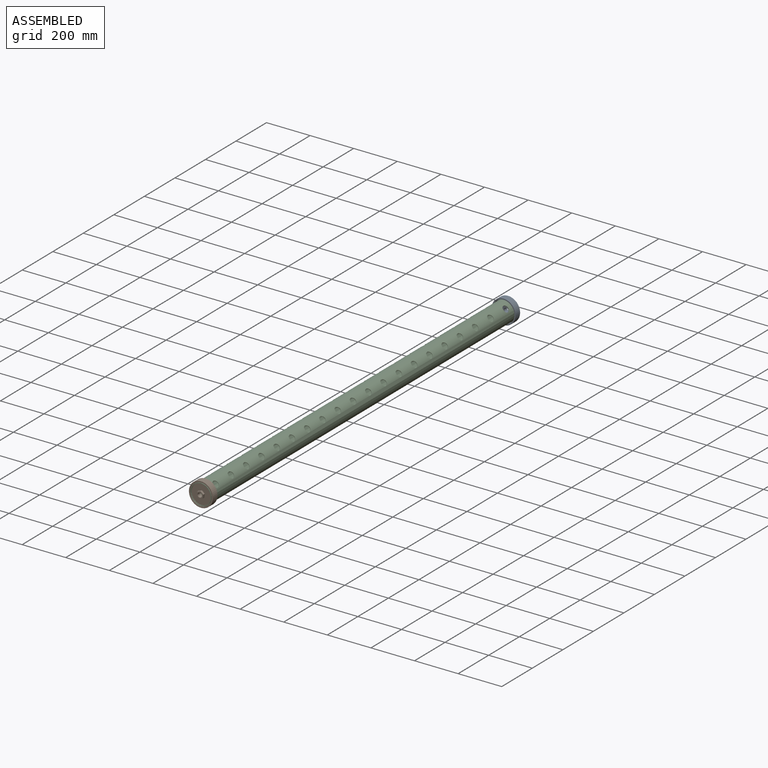
[diagram: assembled view]
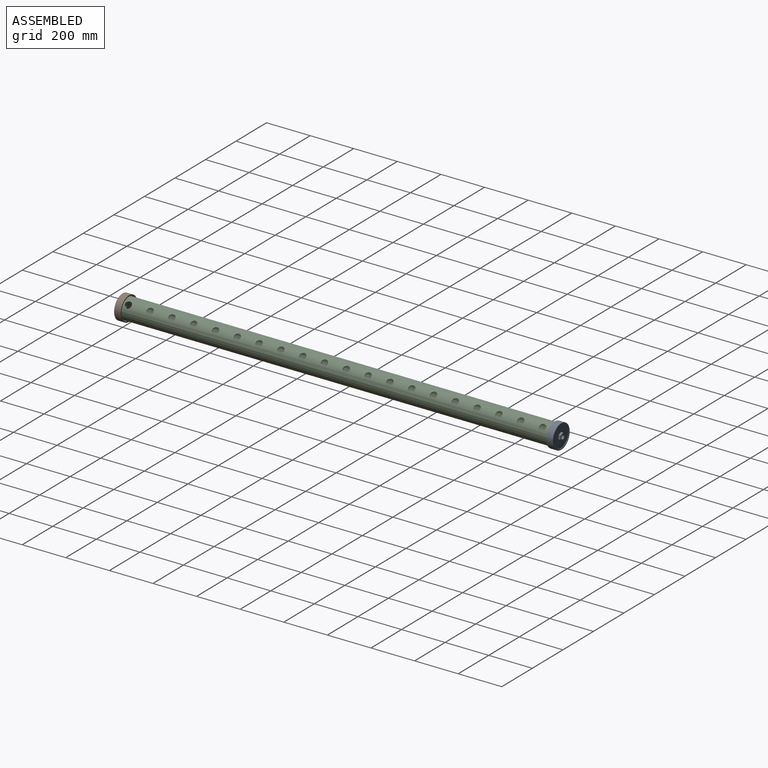
[diagram: assembled view, second angle]
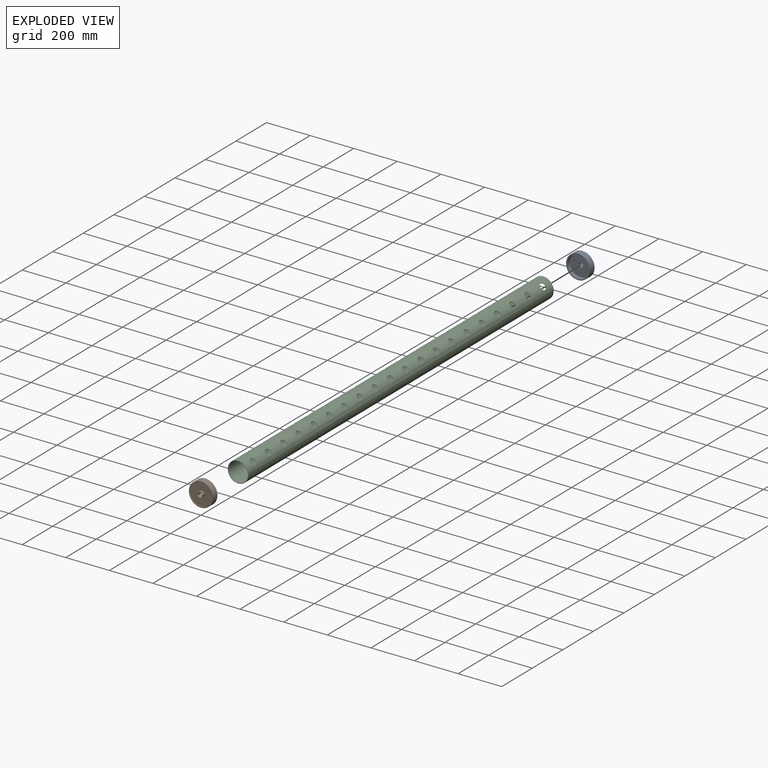
[diagram: exploded view]
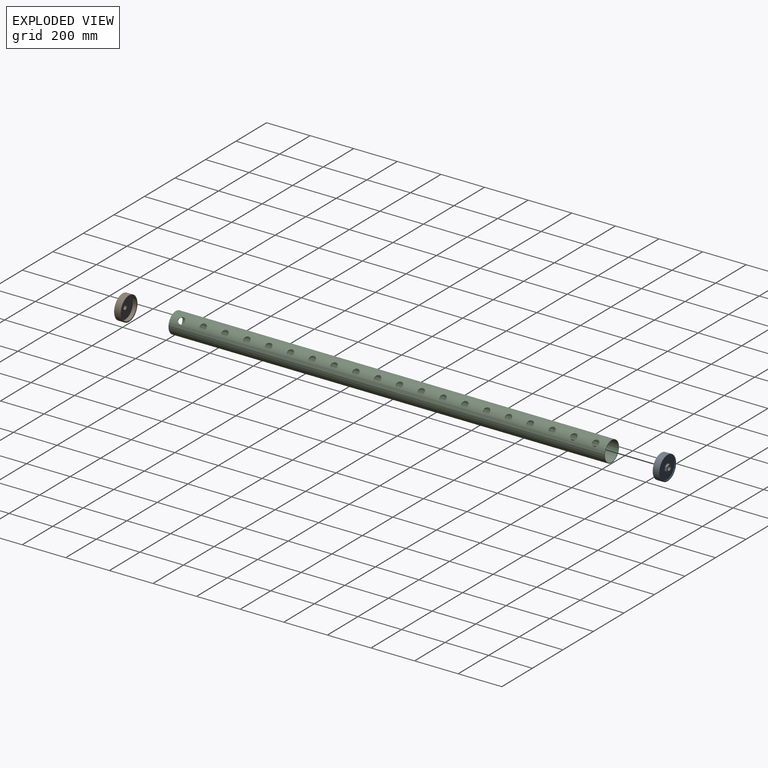
[diagram: exploded view, second angle]
ASSEMBLY  parts=3 mates=2
PART A: 15 faces, bbox 110x37.5x110 mm
  f0: plane 100x100mm, normal (0,-1,0), area 7074.6mm2, adj f2,f7,f8,f9,f10,f11,f12
  f1: cylinder r=50mm len=100mm, axis (0,1,0), area 5497.8mm2, adj f5,f6
  f2: cylinder r=50mm len=100mm, axis (0,1,0), area 785.4mm2, adj f0,f4
  f3: cylinder r=55mm len=110mm, axis (0,1,0), area 10367.3mm2, adj f4,f5
  f4: plane 110x110mm, normal (0,-1,0), area 1649.3mm2, adj f2,f3
  f5: plane 110x110mm, normal (0,1,0), area 1649.3mm2, adj f1,f3
  f6: plane 100x100mm, normal (0,1,0), area 7539.8mm2, adj f1,f14
  f7: plane 16.09x10mm, normal (0.37,0,-0.93), area 173.2mm2, adj f0,f8,f12,f13
  f8: plane 17.14x10mm, normal (0.99,0,-0.14), area 173.2mm2, adj f0,f7,f9,f13
  f9: plane 13.6x10.73mm, normal (0.62,0,0.79), area 173.2mm2, adj f0,f8,f10,f13
  f10: plane 16.09x10mm, normal (-0.37,0,0.93), area 173.2mm2, adj f0,f9,f11,f13
  f11: plane 17.14x10mm, normal (-0.99,0,0.14), area 173.2mm2, adj f0,f10,f12,f13
  f12: plane 13.6x10.73mm, normal (-0.62,0,-0.79), area 173.2mm2, adj f0,f7,f11,f13
  f13: plane 34.28x32.18mm, normal (0,-1,0), area 465.3mm2, adj f7,f8,f9,f10,f11,f12,f14
  f14: cylinder r=10mm len=20mm, axis (0,1,0), area 1256.6mm2, adj f6,f13
PART B: same geometry as A
PART C: 43 faces, bbox 95x2000x95 mm
  f0: cylinder r=47.5mm len=2000mm, axis (0,-1,0), area 569049.5mm2, adj f2,f3,f4,f5,f6,f7,f8,f9
  f1: cylinder r=45mm len=2000mm, axis (0,-1,0), area 537621.8mm2, adj f2,f3,f4,f5,f6,f7,f8,f9
  f2: plane 95x95mm, normal (0,1,0), area 726.5mm2, adj f0,f1
  f3: plane 95x95mm, normal (0,-1,0), area 726.5mm2, adj f0,f1
  f4: cylinder r=15mm len=30mm, axis (-0.71,0,-0.71), area 242.1mm2, adj f0,f1
  f5: cylinder r=15mm len=30mm, axis (-0.71,0,-0.71), area 242.1mm2, adj f0,f1
  f6: cylinder r=15mm len=30mm, axis (-0.71,0,-0.71), area 242.1mm2, adj f0,f1
  f7: cylinder r=15mm len=30mm, axis (-0.71,0,-0.71), area 242.1mm2, adj f0,f1
  f8: cylinder r=15mm len=30mm, axis (-0.71,0,-0.71), area 242.1mm2, adj f0,f1
  f9: cylinder r=15mm len=30mm, axis (-0.71,0,-0.71), area 242.1mm2, adj f0,f1
  f10: cylinder r=15mm len=30mm, axis (-0.71,0,-0.71), area 242.1mm2, adj f0,f1
  f11: cylinder r=15mm len=30mm, axis (-0.71,0,-0.71), area 242.1mm2, adj f0,f1
  f12: cylinder r=15mm len=30mm, axis (-0.71,0,-0.71), area 242.1mm2, adj f0,f1
  f13: cylinder r=15mm len=30mm, axis (-0.71,0,-0.71), area 242.1mm2, adj f0,f1
  f14: cylinder r=15mm len=30mm, axis (-0.71,0,-0.71), area 242.1mm2, adj f0,f1
  f15: cylinder r=15mm len=30mm, axis (-0.71,0,-0.71), area 242.1mm2, adj f0,f1
  f16: cylinder r=15mm len=30mm, axis (-0.71,0,-0.71), area 242.1mm2, adj f0,f1
  f17: cylinder r=15mm len=30mm, axis (-0.71,0,-0.71), area 242.1mm2, adj f0,f1
  f18: cylinder r=15mm len=30mm, axis (-0.71,0,-0.71), area 242.1mm2, adj f0,f1
  f19: cylinder r=15mm len=30mm, axis (-0.71,0,-0.71), area 242.1mm2, adj f0,f1
  f20: cylinder r=15mm len=30mm, axis (-0.71,0,-0.71), area 242.1mm2, adj f0,f1
  f21: cylinder r=15mm len=30mm, axis (-0.71,0,-0.71), area 242.1mm2, adj f0,f1
  f22: cylinder r=15mm len=30mm, axis (-0.71,0,-0.71), area 242.1mm2, adj f0,f1
  f23: cylinder r=15mm len=30mm, axis (-0.71,0,-0.71), area 242.1mm2, adj f0,f1
  f24: cylinder r=15mm len=30mm, axis (0.71,0,-0.71), area 242.3mm2, adj f0,f1
  f25: cylinder r=15mm len=30mm, axis (0.71,0,-0.71), area 242.3mm2, adj f0,f1
  f26: cylinder r=15mm len=30mm, axis (0.71,0,-0.71), area 242.3mm2, adj f0,f1
  f27: cylinder r=15mm len=30mm, axis (0.71,0,-0.71), area 242.3mm2, adj f0,f1
  f28: cylinder r=15mm len=30mm, axis (0.71,0,-0.71), area 242.3mm2, adj f0,f1
  f29: cylinder r=15mm len=30mm, axis (0.71,0,-0.71), area 242.3mm2, adj f0,f1
  f30: cylinder r=15mm len=30mm, axis (0.71,0,-0.71), area 242.3mm2, adj f0,f1
  f31: cylinder r=15mm len=30mm, axis (0.71,0,-0.71), area 242.3mm2, adj f0,f1
  f32: cylinder r=15mm len=30mm, axis (0.71,0,-0.71), area 242.3mm2, adj f0,f1
  f33: cylinder r=15mm len=30mm, axis (0.71,0,-0.71), area 242.3mm2, adj f0,f1
  f34: cylinder r=15mm len=30mm, axis (0.71,0,-0.71), area 242.3mm2, adj f0,f1
  f35: cylinder r=15mm len=30mm, axis (0.71,0,-0.71), area 242.3mm2, adj f0,f1
  f36: cylinder r=15mm len=30mm, axis (0.71,0,-0.71), area 242.3mm2, adj f0,f1
  f37: cylinder r=15mm len=30mm, axis (0.71,0,-0.71), area 242.3mm2, adj f0,f1
  f38: cylinder r=15mm len=30mm, axis (0.71,0,-0.71), area 242.3mm2, adj f0,f1
  f39: cylinder r=15mm len=30mm, axis (0.71,0,-0.71), area 242.3mm2, adj f0,f1
  f40: cylinder r=15mm len=30mm, axis (0.71,0,-0.71), area 242.3mm2, adj f0,f1
  f41: cylinder r=15mm len=30mm, axis (0.71,0,-0.71), area 242.3mm2, adj f0,f1
  f42: cylinder r=15mm len=30mm, axis (0.71,0,-0.71), area 242.3mm2, adj f0,f1
PLACE A rot(axis=(0,0,1),180deg) t=(0,2000,0)mm
PLACE B t=(0,12.5,0)mm
PLACE C at identity
MATE fastened B.f3 <-> C.f1  axis (0,-1,0) through (0,0,0)mm
MATE fastened A.f14 <-> C.f0  axis (0,-1,0) through (0,2000,0)mm
